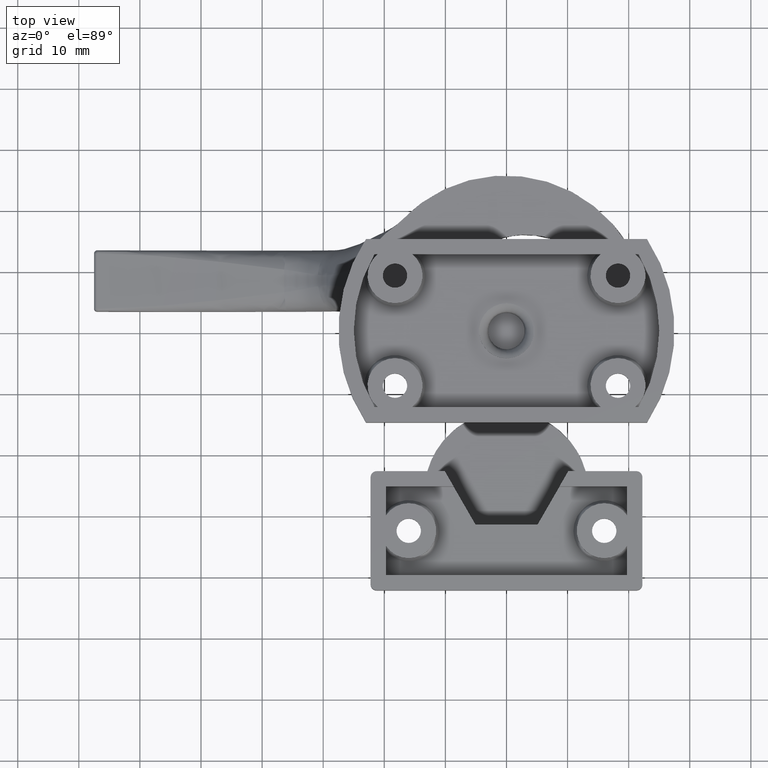
[diagram: clean part render]
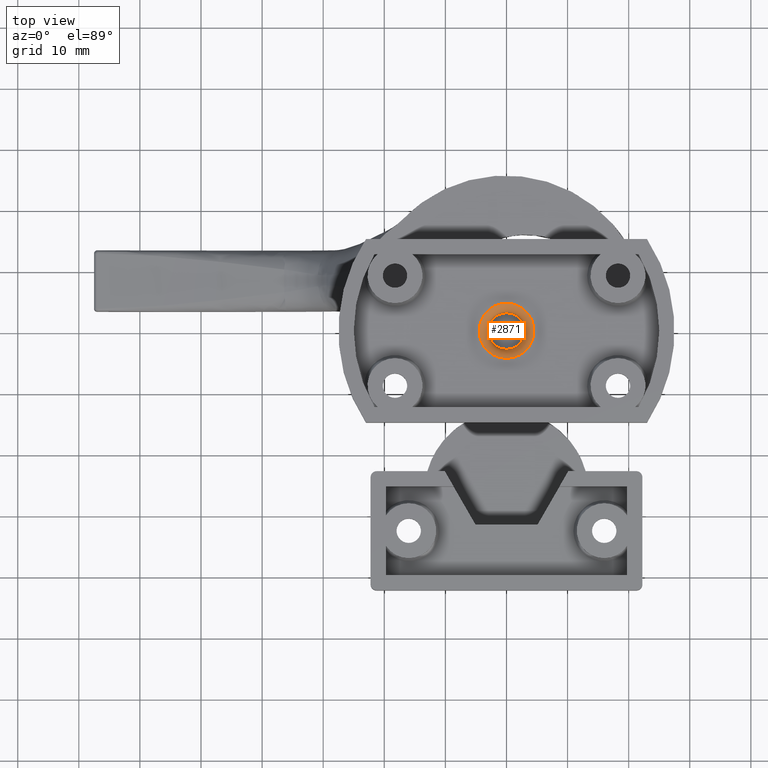
[diagram: same view with one face highlighted and labeled with its STEP entity id]
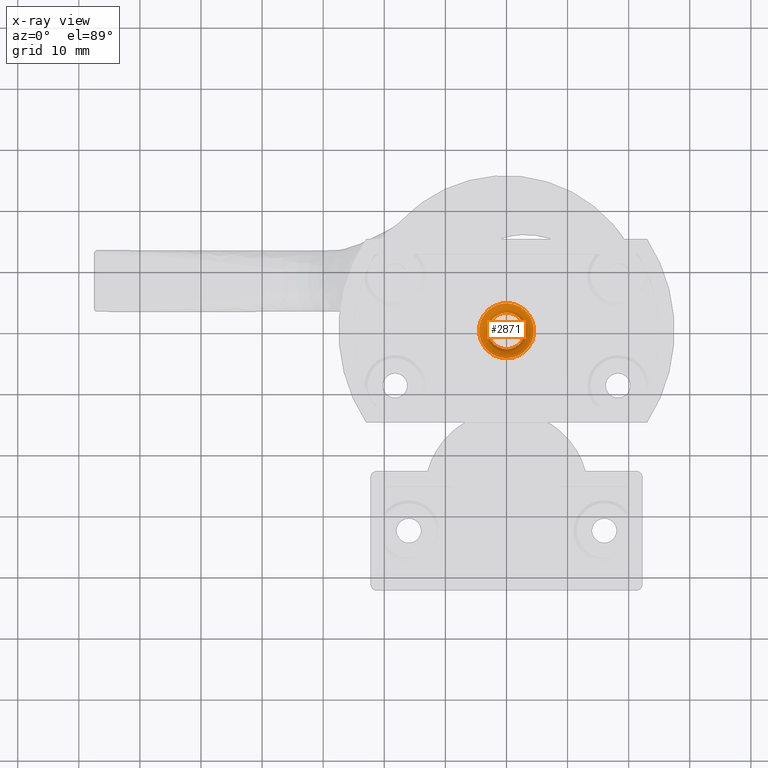
[diagram: x-ray of the same camera — body ghosted, the highlighted face saturated]
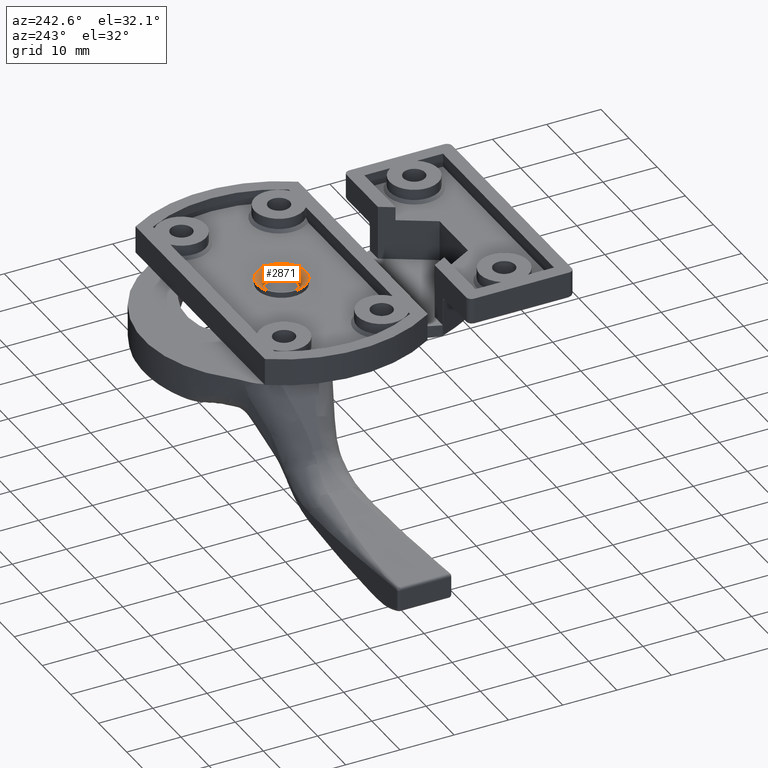
[diagram: same view with one face highlighted and labeled with its STEP entity id]
A machine part, top view. The second image highlights one B-rep face of the part: STEP entity #2871.
The next image is the same camera in x-ray: the body ghosted, the highlighted face saturated — about 0% of this face is hidden behind the body in this view.
A second angle (auxiliary view) of the same face is appended — the face is thin or edge-on in the first view.
In plain terms, the highlighted toroidal blend (fillet) surface has major radius 5 mm and minor (blend) radius 2 mm.
Its self-contained STEP definition (entity closure, byte-faithful):
#62=TOROIDAL_SURFACE('',#3035,5.,2.);
#610=FACE_BOUND('',#915,.T.);
#724=FACE_OUTER_BOUND('',#914,.T.);
#914=EDGE_LOOP('',(#2242));
#915=EDGE_LOOP('',(#2243));
#1075=CIRCLE('',#3036,3.);
#1076=CIRCLE('',#3037,4.5);
#1284=VERTEX_POINT('',#6222);
#1285=VERTEX_POINT('',#6224);
#1631=EDGE_CURVE('',#1284,#1284,#1075,.T.);
#1632=EDGE_CURVE('',#1285,#1285,#1076,.T.);
#2242=ORIENTED_EDGE('',*,*,#1631,.T.);
#2243=ORIENTED_EDGE('',*,*,#1632,.F.);
#2871=ADVANCED_FACE('',(#724,#610),#62,.T.);
#3035=AXIS2_PLACEMENT_3D('',#6221,#3378,#3379);
#3036=AXIS2_PLACEMENT_3D('',#6223,#3380,#3381);
#3037=AXIS2_PLACEMENT_3D('',#6225,#3382,#3383);
#3378=DIRECTION('center_axis',(0.,0.,-1.));
#3379=DIRECTION('ref_axis',(-1.,0.,0.));
#3380=DIRECTION('center_axis',(0.,0.,1.));
#3381=DIRECTION('ref_axis',(-1.,0.,0.));
#3382=DIRECTION('center_axis',(0.,0.,1.));
#3383=DIRECTION('ref_axis',(1.,0.,0.));
#6221=CARTESIAN_POINT('Origin',(0.,0.,3.43649167310371));
#6222=CARTESIAN_POINT('',(3.,3.67394039744206E-16,3.43649167310371));
#6223=CARTESIAN_POINT('Origin',(0.,0.,3.43649167310371));
#6224=CARTESIAN_POINT('',(4.5,0.,1.5));
#6225=CARTESIAN_POINT('Origin',(0.,0.,1.5));